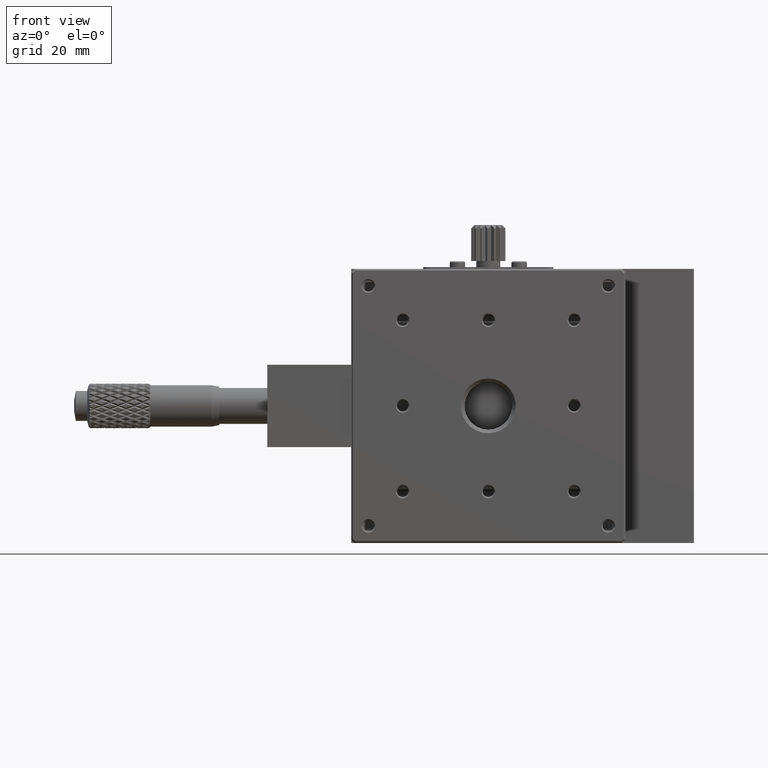
[diagram: clean part render]
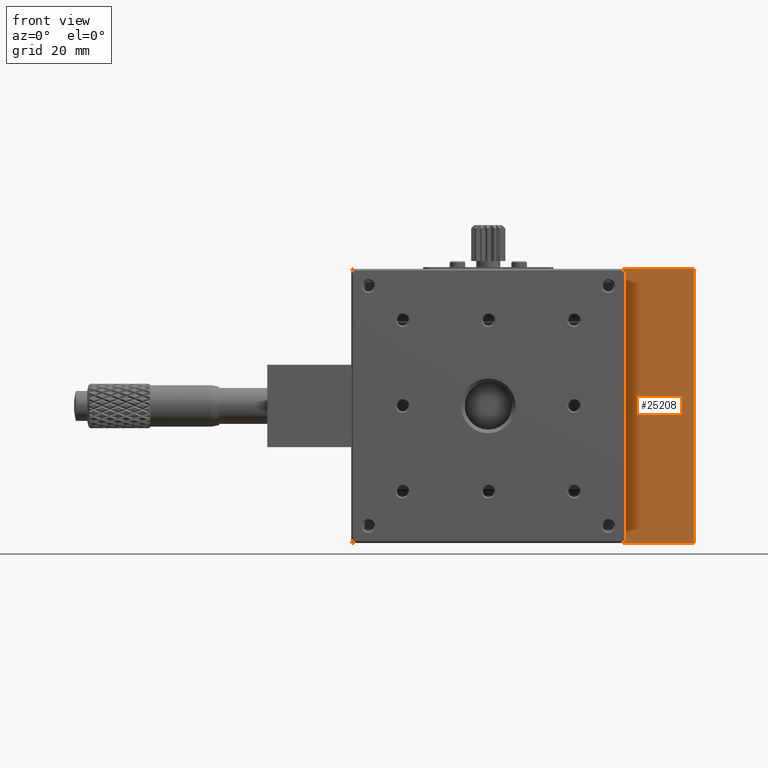
[diagram: same view with one face highlighted and labeled with its STEP entity id]
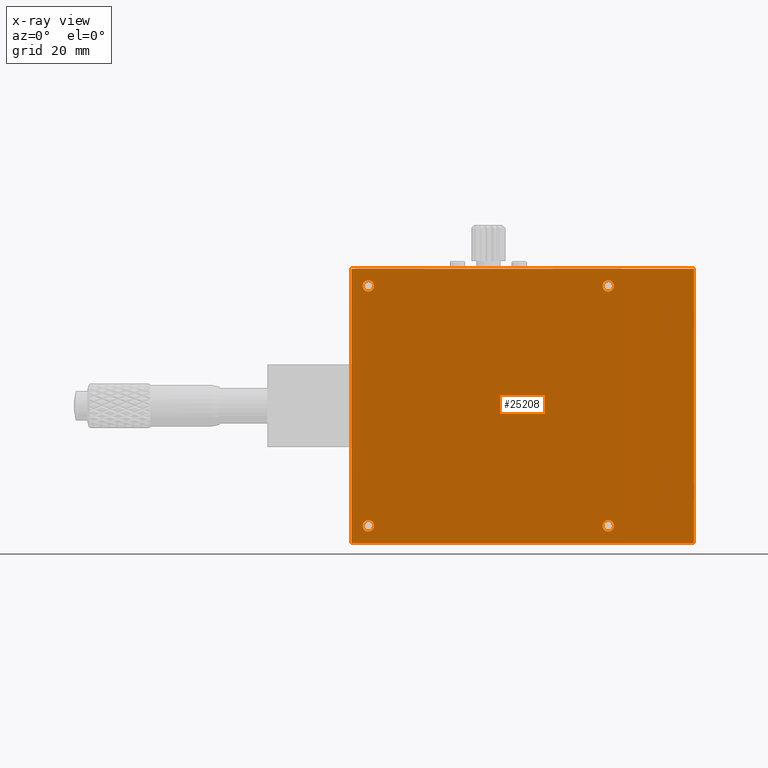
[diagram: x-ray of the same camera — body ghosted, the highlighted face saturated]
A machine part, front view. The second image highlights one B-rep face of the part: STEP entity #25208.
The next image is the same camera in x-ray: the body ghosted, the highlighted face saturated — about 0% of this face is hidden behind the body in this view.
In plain terms, the highlighted planar face has unit normal (0, 1, 0).
Its self-contained STEP definition (entity closure, byte-faithful):
#146 = CARTESIAN_POINT ( 'NONE',  ( 29.50000000000000355, 19.69999999999999929, -36.64999999999999858 ) ) ;
#1147 = EDGE_LOOP ( 'NONE', ( #40712 ) ) ;
#1836 = CARTESIAN_POINT ( 'NONE',  ( 24.50000000000000000, 19.69999999999999929, 40.00000000000000000 ) ) ;
#3462 = ORIENTED_EDGE ( 'NONE', *, *, #18556, .F. ) ;
#3688 = FACE_BOUND ( 'NONE', #37660, .T. ) ;
#5870 = EDGE_LOOP ( 'NONE', ( #18427 ) ) ;
#5934 = VECTOR ( 'NONE', #11240, 1000.000000000000000 ) ;
#6038 = VECTOR ( 'NONE', #16223, 1000.000000000000000 ) ;
#6391 = DIRECTION ( 'NONE',  ( 0.000000000000000000, 0.000000000000000000, -1.000000000000000000 ) ) ;
#6715 = VERTEX_POINT ( 'NONE', #14593 ) ;
#7151 = AXIS2_PLACEMENT_3D ( 'NONE', #18693, #11329, #26772 ) ;
#7875 = CIRCLE ( 'NONE', #38646, 1.649999999999998579 ) ;
#7912 = CARTESIAN_POINT ( 'NONE',  ( 124.5000000000000000, 19.69999999999999929, 40.00000000000000000 ) ) ;
#7976 = FACE_BOUND ( 'NONE', #1147, .T. ) ;
#8180 = EDGE_CURVE ( 'NONE', #33866, #18026, #13267, .T. ) ;
#8224 = FACE_BOUND ( 'NONE', #10233, .T. ) ;
#10233 = EDGE_LOOP ( 'NONE', ( #3462 ) ) ;
#10296 = CARTESIAN_POINT ( 'NONE',  ( 24.50000000000000000, 19.69999999999999929, 40.00000000000000000 ) ) ;
#10510 = EDGE_CURVE ( 'NONE', #26867, #18725, #27338, .T. ) ;
#11240 = DIRECTION ( 'NONE',  ( -1.000000000000000000, -0.000000000000000000, 0.000000000000000000 ) ) ;
#11329 = DIRECTION ( 'NONE',  ( 0.000000000000000000, -1.000000000000000000, 0.000000000000000000 ) ) ;
#11692 = CARTESIAN_POINT ( 'NONE',  ( 24.50000000000000000, 19.69999999999999929, 40.00000000000000000 ) ) ;
#12066 = FACE_BOUND ( 'NONE', #5870, .T. ) ;
#12852 = VERTEX_POINT ( 'NONE', #31342 ) ;
#13267 = LINE ( 'NONE', #1836, #39252 ) ;
#14206 = EDGE_CURVE ( 'NONE', #22768, #22768, #7875, .T. ) ;
#14593 = CARTESIAN_POINT ( 'NONE',  ( 99.50000000000000000, 19.69999999999999929, -36.64999999999999858 ) ) ;
#15252 = ORIENTED_EDGE ( 'NONE', *, *, #48674, .F. ) ;
#16057 = CARTESIAN_POINT ( 'NONE',  ( 24.50000000000000000, 19.69999999999999929, -40.00000000000000000 ) ) ;
#16223 = DIRECTION ( 'NONE',  ( 1.000000000000000000, 0.000000000000000000, -0.000000000000000000 ) ) ;
#16637 = EDGE_CURVE ( 'NONE', #24022, #24022, #44342, .T. ) ;
#18026 = VERTEX_POINT ( 'NONE', #10296 ) ;
#18427 = ORIENTED_EDGE ( 'NONE', *, *, #50059, .F. ) ;
#18556 = EDGE_CURVE ( 'NONE', #12852, #12852, #36294, .T. ) ;
#18693 = CARTESIAN_POINT ( 'NONE',  ( 29.50000000000000355, 19.69999999999999929, 35.00000000000000000 ) ) ;
#18725 = VERTEX_POINT ( 'NONE', #32840 ) ;
#19294 = LINE ( 'NONE', #11692, #6038 ) ;
#19409 = FACE_OUTER_BOUND ( 'NONE', #26334, .T. ) ;
#19468 = ORIENTED_EDGE ( 'NONE', *, *, #10510, .F. ) ;
#19924 = ORIENTED_EDGE ( 'NONE', *, *, #30256, .F. ) ;
#20460 = CARTESIAN_POINT ( 'NONE',  ( 99.50000000000000000, 19.69999999999999929, 33.35000000000000142 ) ) ;
#22013 = AXIS2_PLACEMENT_3D ( 'NONE', #23227, #34587, #46265 ) ;
#22768 = VERTEX_POINT ( 'NONE', #20460 ) ;
#23227 = CARTESIAN_POINT ( 'NONE',  ( 24.50000000000000000, 19.69999999999999929, 40.00000000000000000 ) ) ;
#23784 = ORIENTED_EDGE ( 'NONE', *, *, #14206, .F. ) ;
#23931 = CIRCLE ( 'NONE', #25535, 1.649999999999998579 ) ;
#24022 = VERTEX_POINT ( 'NONE', #146 ) ;
#24188 = DIRECTION ( 'NONE',  ( 0.000000000000000000, -0.000000000000000000, 1.000000000000000000 ) ) ;
#25208 = ADVANCED_FACE ( 'NONE', ( #19409, #8224, #12066, #7976, #3688 ), #26993, .F. ) ;
#25529 = VECTOR ( 'NONE', #46874, 1000.000000000000000 ) ;
#25535 = AXIS2_PLACEMENT_3D ( 'NONE', #41365, #29706, #6391 ) ;
#26334 = EDGE_LOOP ( 'NONE', ( #19468, #15252, #44201, #19924 ) ) ;
#26772 = DIRECTION ( 'NONE',  ( 0.000000000000000000, 0.000000000000000000, -1.000000000000000000 ) ) ;
#26867 = VERTEX_POINT ( 'NONE', #7912 ) ;
#26993 = PLANE ( 'NONE',  #22013 ) ;
#27338 = LINE ( 'NONE', #31403, #25529 ) ;
#28150 = CARTESIAN_POINT ( 'NONE',  ( 29.50000000000000355, 19.69999999999999929, -35.00000000000000000 ) ) ;
#29706 = DIRECTION ( 'NONE',  ( 0.000000000000000000, -1.000000000000000000, 0.000000000000000000 ) ) ;
#30256 = EDGE_CURVE ( 'NONE', #18725, #33866, #49508, .T. ) ;
#31342 = CARTESIAN_POINT ( 'NONE',  ( 29.50000000000000355, 19.69999999999999929, 33.35000000000000142 ) ) ;
#31403 = CARTESIAN_POINT ( 'NONE',  ( 124.5000000000000000, 19.69999999999999929, 40.00000000000000000 ) ) ;
#32840 = CARTESIAN_POINT ( 'NONE',  ( 124.5000000000000000, 19.69999999999999929, -40.00000000000000000 ) ) ;
#33002 = CARTESIAN_POINT ( 'NONE',  ( 99.50000000000000000, 19.69999999999999929, 35.00000000000000000 ) ) ;
#33866 = VERTEX_POINT ( 'NONE', #37984 ) ;
#34587 = DIRECTION ( 'NONE',  ( 0.000000000000000000, 1.000000000000000000, 0.000000000000000000 ) ) ;
#36294 = CIRCLE ( 'NONE', #7151, 1.649999999999998579 ) ;
#37660 = EDGE_LOOP ( 'NONE', ( #23784 ) ) ;
#37984 = CARTESIAN_POINT ( 'NONE',  ( 24.50000000000000000, 19.69999999999999929, -40.00000000000000000 ) ) ;
#38646 = AXIS2_PLACEMENT_3D ( 'NONE', #33002, #44396, #48462 ) ;
#39252 = VECTOR ( 'NONE', #24188, 1000.000000000000000 ) ;
#39570 = DIRECTION ( 'NONE',  ( 0.000000000000000000, 0.000000000000000000, -1.000000000000000000 ) ) ;
#40712 = ORIENTED_EDGE ( 'NONE', *, *, #16637, .F. ) ;
#41365 = CARTESIAN_POINT ( 'NONE',  ( 99.50000000000000000, 19.69999999999999929, -35.00000000000000000 ) ) ;
#42713 = AXIS2_PLACEMENT_3D ( 'NONE', #28150, #43873, #39570 ) ;
#43873 = DIRECTION ( 'NONE',  ( 0.000000000000000000, -1.000000000000000000, 0.000000000000000000 ) ) ;
#44201 = ORIENTED_EDGE ( 'NONE', *, *, #8180, .F. ) ;
#44342 = CIRCLE ( 'NONE', #42713, 1.649999999999998579 ) ;
#44396 = DIRECTION ( 'NONE',  ( 0.000000000000000000, -1.000000000000000000, 0.000000000000000000 ) ) ;
#46265 = DIRECTION ( 'NONE',  ( 0.000000000000000000, -0.000000000000000000, 1.000000000000000000 ) ) ;
#46874 = DIRECTION ( 'NONE',  ( -0.000000000000000000, 0.000000000000000000, -1.000000000000000000 ) ) ;
#48462 = DIRECTION ( 'NONE',  ( 0.000000000000000000, 0.000000000000000000, -1.000000000000000000 ) ) ;
#48674 = EDGE_CURVE ( 'NONE', #18026, #26867, #19294, .T. ) ;
#49508 = LINE ( 'NONE', #16057, #5934 ) ;
#50059 = EDGE_CURVE ( 'NONE', #6715, #6715, #23931, .T. ) ;